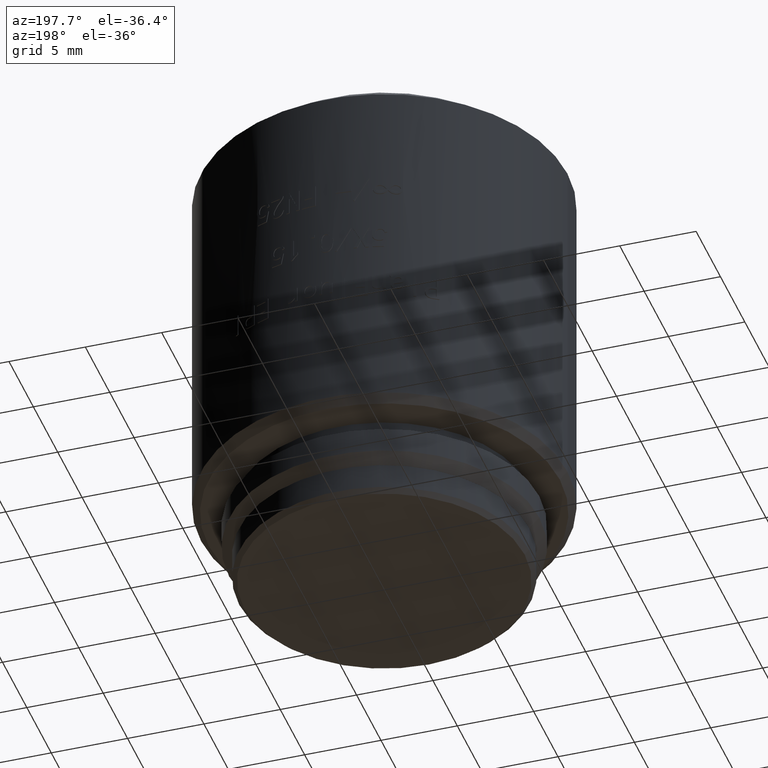
[diagram: clean part render]
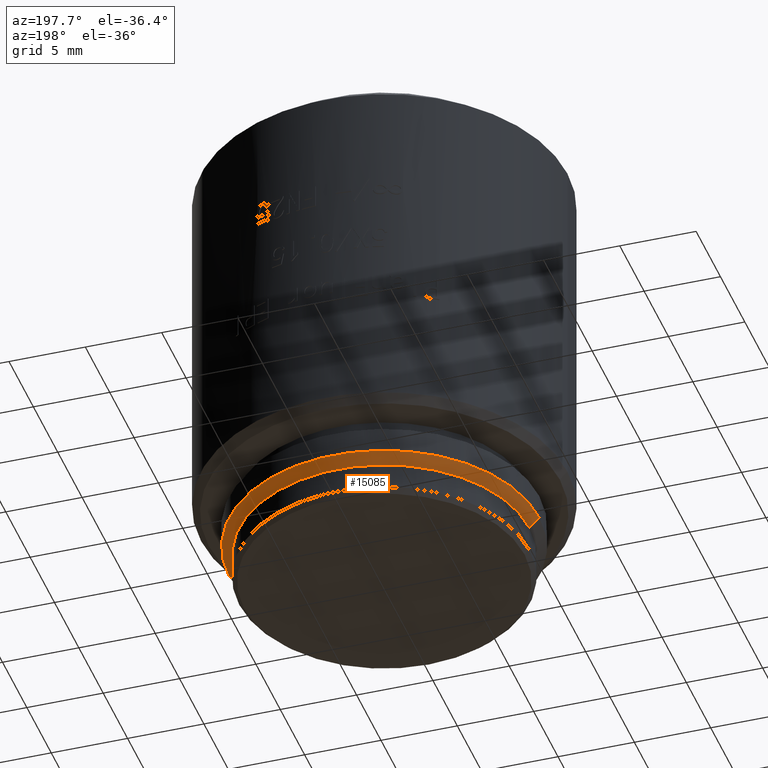
[diagram: same view with one face highlighted and labeled with its STEP entity id]
A machine part, auxiliary view. The second image highlights one B-rep face of the part: STEP entity #15085.
In plain terms, the highlighted conical surface has half-angle 45 deg.
Its self-contained STEP definition (entity closure, byte-faithful):
#4 = ORIENTED_EDGE ( 'NONE', *, *, #15380, .F. ) ;
#537 = AXIS2_PLACEMENT_3D ( 'NONE', #10653, #591, #6561 ) ;
#591 = DIRECTION ( 'NONE',  ( 0.000000000000000000, 0.000000000000000000, 1.000000000000000000 ) ) ;
#889 = CIRCLE ( 'NONE', #11818, 9.509999999999999787 ) ;
#1458 = CONICAL_SURFACE ( 'NONE', #3026, 10.16000000000000014, 0.7853981633974476129 ) ;
#1619 = LINE ( 'NONE', #1821, #3223 ) ;
#1821 = CARTESIAN_POINT ( 'NONE',  ( -10.16000000000000014, 1.244241147933710864E-15, 2.649999999999999911 ) ) ;
#3026 = AXIS2_PLACEMENT_3D ( 'NONE', #13826, #16937, #18296 ) ;
#3081 = VERTEX_POINT ( 'NONE', #9122 ) ;
#3223 = VECTOR ( 'NONE', #12176, 1000.000000000000000 ) ;
#4131 = CARTESIAN_POINT ( 'NONE',  ( -10.16000000000000014, 1.244241147933710864E-15, 2.649999999999999911 ) ) ;
#4287 = EDGE_CURVE ( 'NONE', #17501, #3081, #7957, .T. ) ;
#4775 = VERTEX_POINT ( 'NONE', #11523 ) ;
#4915 = CIRCLE ( 'NONE', #537, 10.16000000000000014 ) ;
#5037 = CARTESIAN_POINT ( 'NONE',  ( 10.16000000000000014, 0.000000000000000000, 2.649999999999999911 ) ) ;
#5981 = EDGE_CURVE ( 'NONE', #4775, #11996, #1619, .T. ) ;
#6478 = CARTESIAN_POINT ( 'NONE',  ( 0.000000000000000000, 0.000000000000000000, 2.000000000000000000 ) ) ;
#6561 = DIRECTION ( 'NONE',  ( -1.000000000000000000, 0.000000000000000000, 0.000000000000000000 ) ) ;
#7009 = ORIENTED_EDGE ( 'NONE', *, *, #4287, .F. ) ;
#7957 = LINE ( 'NONE', #5037, #15060 ) ;
#8041 = DIRECTION ( 'NONE',  ( 0.000000000000000000, 0.000000000000000000, -1.000000000000000000 ) ) ;
#9122 = CARTESIAN_POINT ( 'NONE',  ( 10.16000000000000014, 0.000000000000000000, 2.649999999999999911 ) ) ;
#9367 = EDGE_LOOP ( 'NONE', ( #17458, #18883, #4, #7009 ) ) ;
#9426 = DIRECTION ( 'NONE',  ( 0.7071067811865470176, 0.000000000000000000, 0.7071067811865480168 ) ) ;
#10653 = CARTESIAN_POINT ( 'NONE',  ( 0.000000000000000000, 0.000000000000000000, 2.649999999999999911 ) ) ;
#11523 = CARTESIAN_POINT ( 'NONE',  ( -9.509999999999999787, 1.204440126961421665E-15, 2.000000000000000000 ) ) ;
#11818 = AXIS2_PLACEMENT_3D ( 'NONE', #6478, #8041, #15452 ) ;
#11996 = VERTEX_POINT ( 'NONE', #4131 ) ;
#12176 = DIRECTION ( 'NONE',  ( -0.7071067811865470176, 8.659560562354926695E-17, 0.7071067811865480168 ) ) ;
#13088 = EDGE_CURVE ( 'NONE', #4775, #17501, #889, .T. ) ;
#13826 = CARTESIAN_POINT ( 'NONE',  ( 0.000000000000000000, 0.000000000000000000, 2.649999999999999911 ) ) ;
#15060 = VECTOR ( 'NONE', #9426, 1000.000000000000000 ) ;
#15085 = ADVANCED_FACE ( 'NONE', ( #17216 ), #1458, .T. ) ;
#15380 = EDGE_CURVE ( 'NONE', #3081, #11996, #4915, .T. ) ;
#15452 = DIRECTION ( 'NONE',  ( -1.000000000000000000, 0.000000000000000000, 0.000000000000000000 ) ) ;
#16314 = CARTESIAN_POINT ( 'NONE',  ( 9.509999999999999787, 0.000000000000000000, 2.000000000000000000 ) ) ;
#16937 = DIRECTION ( 'NONE',  ( 0.000000000000000000, 0.000000000000000000, 1.000000000000000000 ) ) ;
#17216 = FACE_OUTER_BOUND ( 'NONE', #9367, .T. ) ;
#17458 = ORIENTED_EDGE ( 'NONE', *, *, #13088, .F. ) ;
#17501 = VERTEX_POINT ( 'NONE', #16314 ) ;
#18296 = DIRECTION ( 'NONE',  ( 1.000000000000000000, 0.000000000000000000, 0.000000000000000000 ) ) ;
#18883 = ORIENTED_EDGE ( 'NONE', *, *, #5981, .T. ) ;